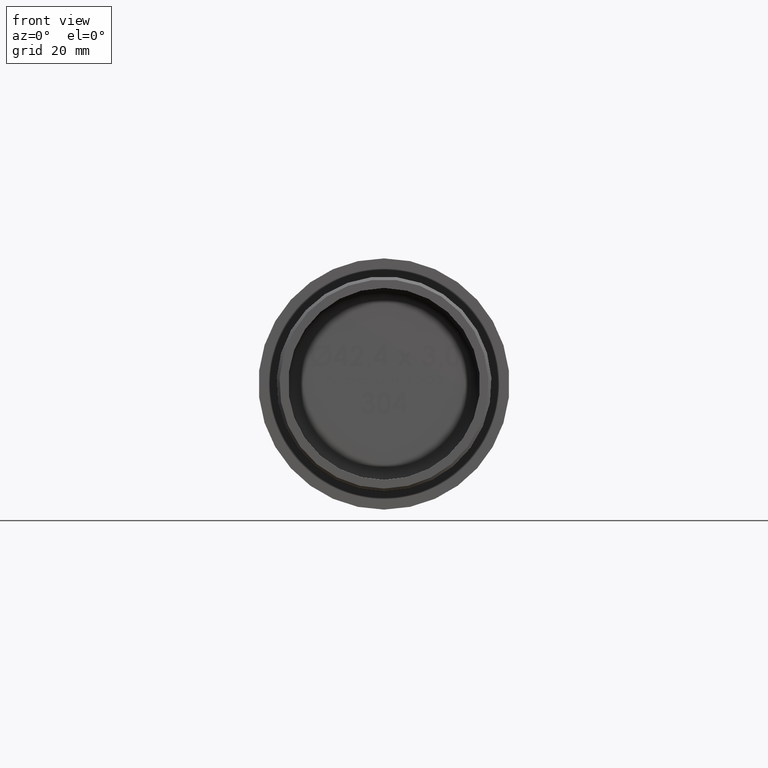
[diagram: clean part render]
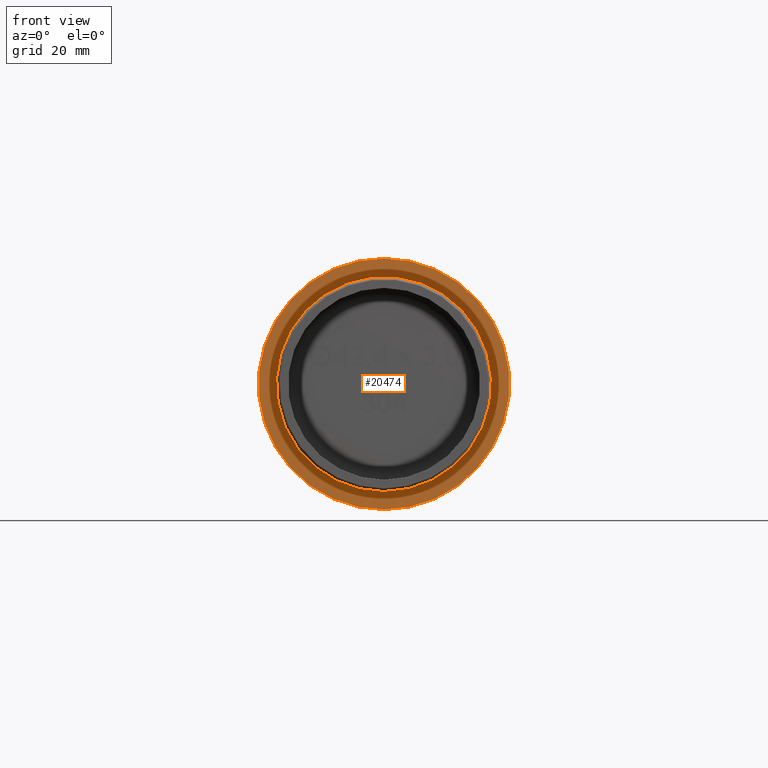
[diagram: same view with one face highlighted and labeled with its STEP entity id]
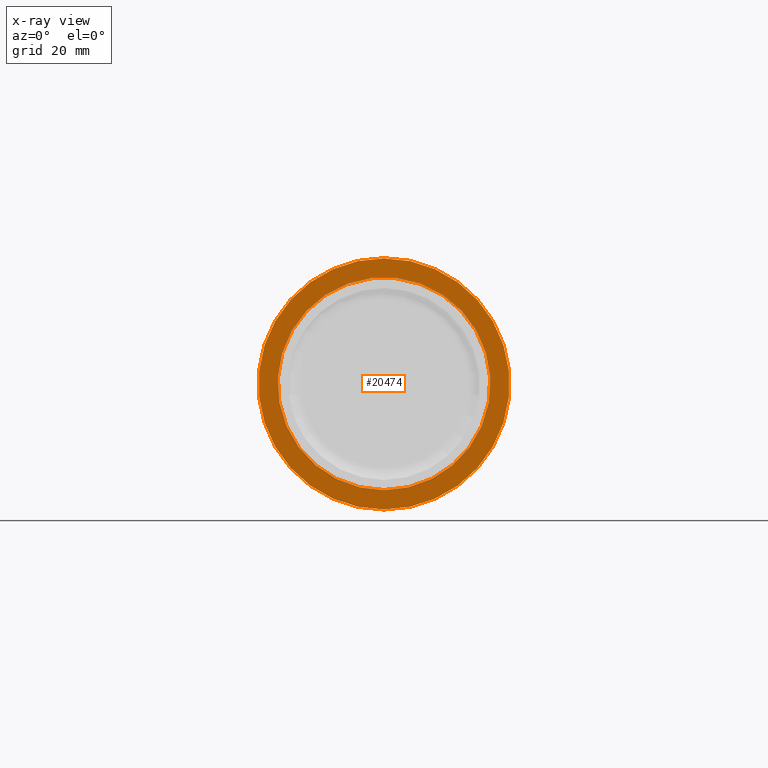
[diagram: x-ray of the same camera — body ghosted, the highlighted face saturated]
A machine part, front view. The second image highlights one B-rep face of the part: STEP entity #20474.
The next image is the same camera in x-ray: the body ghosted, the highlighted face saturated — about 6% of this face is hidden behind the body in this view.
In plain terms, the highlighted planar face has unit normal (0, -1, -0).
Its self-contained STEP definition (entity closure, byte-faithful):
#2212 = EDGE_CURVE ( 'NONE', #17102, #17102, #15291, .T. ) ;
#2801 = PLANE ( 'NONE',  #7019 ) ;
#2809 = FACE_OUTER_BOUND ( 'NONE', #15310, .T. ) ;
#3449 = AXIS2_PLACEMENT_3D ( 'NONE', #6411, #4817, #22154 ) ;
#4002 = ORIENTED_EDGE ( 'NONE', *, *, #10650, .F. ) ;
#4688 = CARTESIAN_POINT ( 'NONE',  ( 21.19999999999999929, 30.00000000000000000, 0.000000000000000000 ) ) ;
#4817 = DIRECTION ( 'NONE',  ( -0.000000000000000000, -1.000000000000000000, -0.000000000000000000 ) ) ;
#6134 = AXIS2_PLACEMENT_3D ( 'NONE', #15586, #19134, #6829 ) ;
#6411 = CARTESIAN_POINT ( 'NONE',  ( 0.000000000000000000, 30.00000000000000355, 0.000000000000000000 ) ) ;
#6829 = DIRECTION ( 'NONE',  ( 0.000000000000000000, 0.000000000000000000, -1.000000000000000000 ) ) ;
#7019 = AXIS2_PLACEMENT_3D ( 'NONE', #4688, #9768, #19966 ) ;
#7432 = FACE_BOUND ( 'NONE', #21435, .T. ) ;
#9746 = CIRCLE ( 'NONE', #6134, 17.94999999999999929 ) ;
#9768 = DIRECTION ( 'NONE',  ( 0.000000000000000000, -1.000000000000000000, -0.000000000000000000 ) ) ;
#10650 = EDGE_CURVE ( 'NONE', #12507, #12507, #9746, .T. ) ;
#12507 = VERTEX_POINT ( 'NONE', #17650 ) ;
#15291 = CIRCLE ( 'NONE', #3449, 21.19999999999999929 ) ;
#15310 = EDGE_LOOP ( 'NONE', ( #17971 ) ) ;
#15586 = CARTESIAN_POINT ( 'NONE',  ( 0.000000000000000000, 30.00000000000000000, 0.000000000000000000 ) ) ;
#17102 = VERTEX_POINT ( 'NONE', #19552 ) ;
#17650 = CARTESIAN_POINT ( 'NONE',  ( 0.000000000000000000, 30.00000000000000000, -17.94999999999999929 ) ) ;
#17971 = ORIENTED_EDGE ( 'NONE', *, *, #2212, .T. ) ;
#19134 = DIRECTION ( 'NONE',  ( -0.000000000000000000, -1.000000000000000000, -0.000000000000000000 ) ) ;
#19552 = CARTESIAN_POINT ( 'NONE',  ( 0.000000000000000000, 30.00000000000000355, -21.19999999999999929 ) ) ;
#19966 = DIRECTION ( 'NONE',  ( 0.000000000000000000, 0.000000000000000000, -1.000000000000000000 ) ) ;
#20474 = ADVANCED_FACE ( 'NONE', ( #2809, #7432 ), #2801, .T. ) ;
#21435 = EDGE_LOOP ( 'NONE', ( #4002 ) ) ;
#22154 = DIRECTION ( 'NONE',  ( 0.000000000000000000, 0.000000000000000000, -1.000000000000000000 ) ) ;